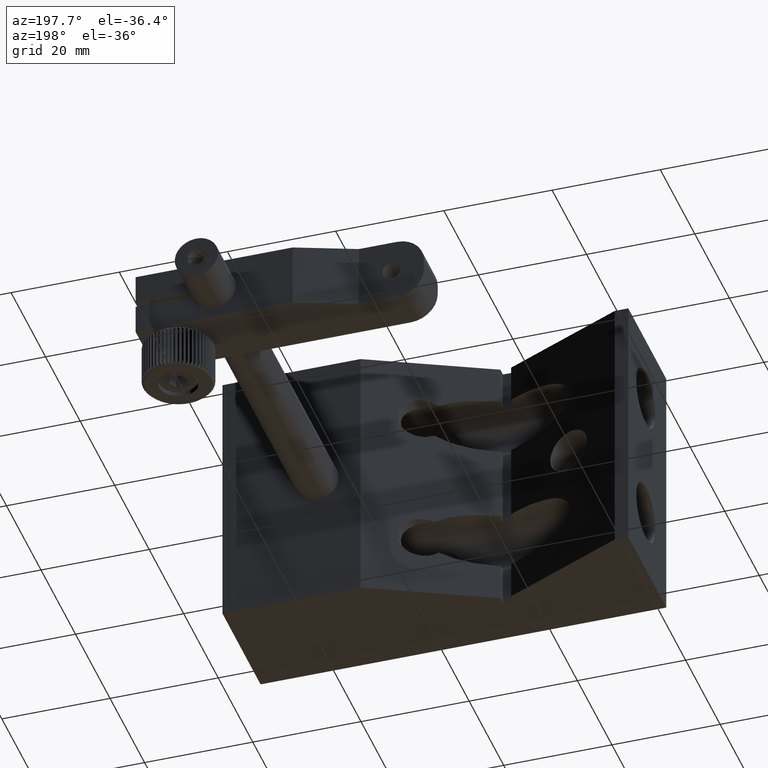
[diagram: clean part render]
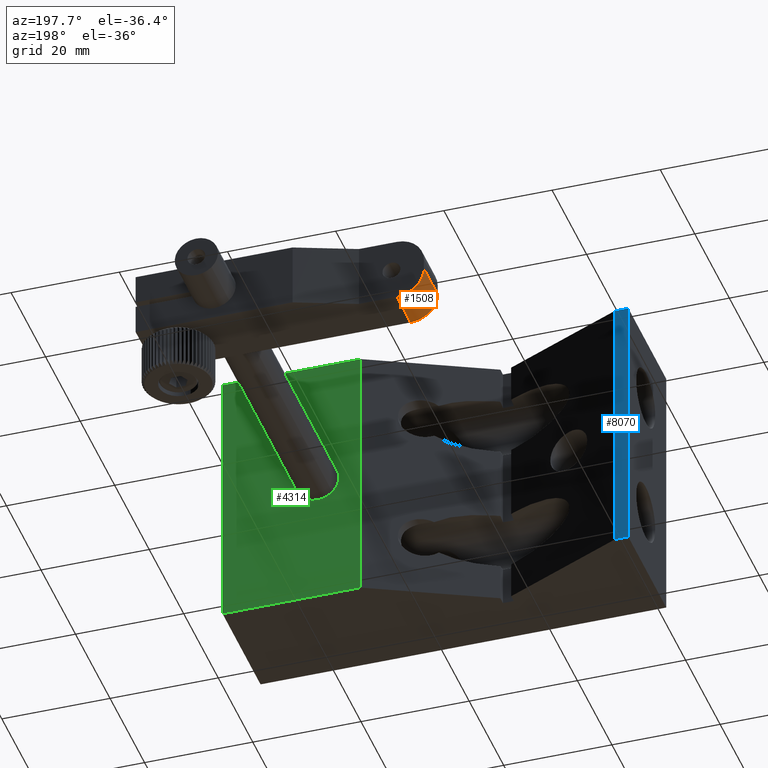
[diagram: same view with three faces highlighted in distinct colors, each labeled with its STEP entity id]
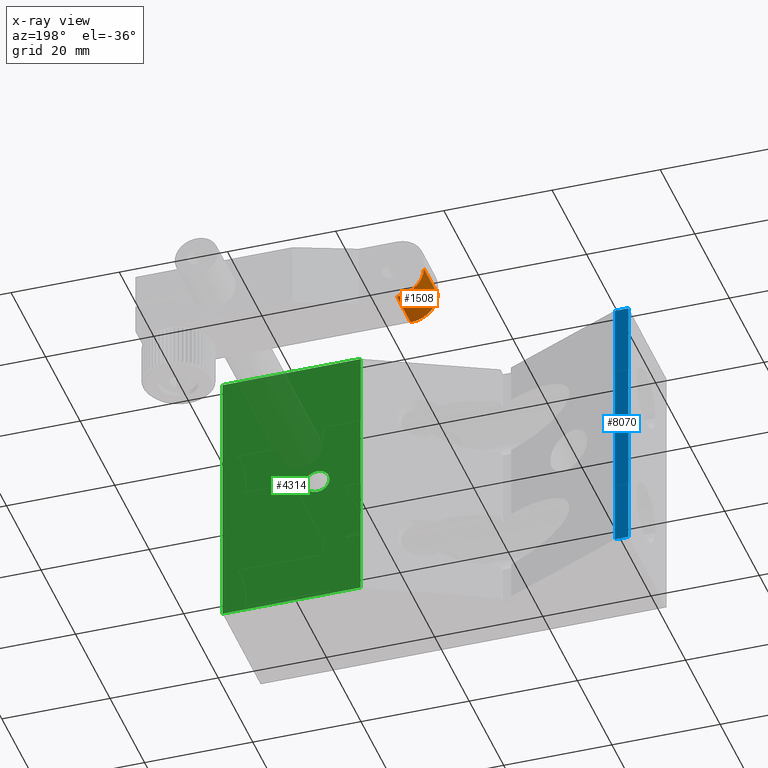
[diagram: x-ray of the same camera — body ghosted, the three highlighted faces saturated]
A machine part, auxiliary view with three faces highlighted in distinct colors.
The next image is the same camera in x-ray (body ghosted, the three faces saturated) — at least one of them is partly hidden behind the body in this view.
Their STEP definitions:

[orange] entity #1508 — the highlighted cylindrical surface (edge-blend (fillet) strip) has radius 5 mm, axis along (0, -1, 0).
#272 = LINE ( 'NONE', #2365, #12798 ) ;
#449 = ORIENTED_EDGE ( 'NONE', *, *, #10768, .F. ) ;
#1508 = ADVANCED_FACE ( 'NONE', ( #1855 ), #6385, .T. ) ;
#1809 = VERTEX_POINT ( 'NONE', #3890 ) ;
#1855 = FACE_OUTER_BOUND ( 'NONE', #8318, .T. ) ;
#1920 = ORIENTED_EDGE ( 'NONE', *, *, #6201, .F. ) ;
#2365 = CARTESIAN_POINT ( 'NONE',  ( -15.71396697902724800, 63.14249319889783900, -5.999999999999996400 ) ) ;
#2611 = AXIS2_PLACEMENT_3D ( 'NONE', #8272, #2904, #3980 ) ;
#2839 = VERTEX_POINT ( 'NONE', #5699 ) ;
#2904 = DIRECTION ( 'NONE',  ( -0.0000000000000000000, 1.000000000000000000, -0.0000000000000000000 ) ) ;
#2940 = EDGE_CURVE ( 'NONE', #11255, #1809, #8053, .T. ) ;
#3425 = DIRECTION ( 'NONE',  ( -0.0000000000000000000, 1.000000000000000000, -0.0000000000000000000 ) ) ;
#3519 = CARTESIAN_POINT ( 'NONE',  ( -15.71396697902724800, 71.14249319889783900, -0.9999999999999965600 ) ) ;
#3784 = CARTESIAN_POINT ( 'NONE',  ( -15.71396697902724800, 63.14249319889783900, -0.9999999999999965600 ) ) ;
#3890 = CARTESIAN_POINT ( 'NONE',  ( -15.71396697902724800, 63.14249319889783900, -5.999999999999996400 ) ) ;
#3980 = DIRECTION ( 'NONE',  ( 0.0000000000000000000, 0.0000000000000000000, -1.000000000000000000 ) ) ;
#4378 = CARTESIAN_POINT ( 'NONE',  ( -20.71396697902724800, 71.14249319889783900, -0.9999999999999965600 ) ) ;
#5151 = CARTESIAN_POINT ( 'NONE',  ( -20.71396697902724800, 71.14249319889783900, -0.9999999999999965600 ) ) ;
#5631 = DIRECTION ( 'NONE',  ( 0.0000000000000000000, 0.0000000000000000000, 1.000000000000000000 ) ) ;
#5644 = EDGE_CURVE ( 'NONE', #2839, #13839, #6454, .T. ) ;
#5699 = CARTESIAN_POINT ( 'NONE',  ( -15.71396697902724800, 71.14249319889783900, -5.999999999999996400 ) ) ;
#6201 = EDGE_CURVE ( 'NONE', #1809, #2839, #272, .T. ) ;
#6286 = LINE ( 'NONE', #5151, #12310 ) ;
#6385 = CYLINDRICAL_SURFACE ( 'NONE', #7336, 5.000000000000000000 ) ;
#6454 = CIRCLE ( 'NONE', #2611, 5.000000000000000000 ) ;
#6628 = DIRECTION ( 'NONE',  ( 0.0000000000000000000, 0.0000000000000000000, -1.000000000000000000 ) ) ;
#6888 = ORIENTED_EDGE ( 'NONE', *, *, #5644, .F. ) ;
#7295 = DIRECTION ( 'NONE',  ( 0.0000000000000000000, -1.000000000000000000, 0.0000000000000000000 ) ) ;
#7336 = AXIS2_PLACEMENT_3D ( 'NONE', #3519, #11108, #6628 ) ;
#8053 = CIRCLE ( 'NONE', #9852, 5.000000000000000000 ) ;
#8272 = CARTESIAN_POINT ( 'NONE',  ( -15.71396697902724800, 71.14249319889783900, -0.9999999999999965600 ) ) ;
#8318 = EDGE_LOOP ( 'NONE', ( #6888, #1920, #11471, #449 ) ) ;
#9852 = AXIS2_PLACEMENT_3D ( 'NONE', #3784, #9916, #5631 ) ;
#9916 = DIRECTION ( 'NONE',  ( -0.0000000000000000000, -1.000000000000000000, -0.0000000000000000000 ) ) ;
#10542 = CARTESIAN_POINT ( 'NONE',  ( -20.71396697902724800, 63.14249319889783900, -0.9999999999999965600 ) ) ;
#10768 = EDGE_CURVE ( 'NONE', #13839, #11255, #6286, .T. ) ;
#11108 = DIRECTION ( 'NONE',  ( 0.0000000000000000000, -1.000000000000000000, 0.0000000000000000000 ) ) ;
#11255 = VERTEX_POINT ( 'NONE', #10542 ) ;
#11471 = ORIENTED_EDGE ( 'NONE', *, *, #2940, .F. ) ;
#12310 = VECTOR ( 'NONE', #7295, 1000.000000000000000 ) ;
#12798 = VECTOR ( 'NONE', #3425, 1000.000000000000000 ) ;
#13839 = VERTEX_POINT ( 'NONE', #4378 ) ;

[blue] entity #8070 — the highlighted planar face has unit normal (-0, 1, 0).
#687 = VECTOR ( 'NONE', #9258, 1000.000000000000000 ) ;
#691 = PLANE ( 'NONE',  #5572 ) ;
#966 = DIRECTION ( 'NONE',  ( 0.0000000000000000000, 0.0000000000000000000, 1.000000000000000000 ) ) ;
#1776 = EDGE_CURVE ( 'NONE', #2551, #3485, #9898, .T. ) ;
#1786 = CARTESIAN_POINT ( 'NONE',  ( -40.71396697902721900, 15.40986166889786100, 25.00000000000000000 ) ) ;
#1825 = DIRECTION ( 'NONE',  ( -1.000000000000000000, -4.163336342344333900E-015, -0.0000000000000000000 ) ) ;
#1930 = DIRECTION ( 'NONE',  ( 0.0000000000000000000, 0.0000000000000000000, 1.000000000000000000 ) ) ;
#2021 = CARTESIAN_POINT ( 'NONE',  ( -40.71396697902721900, 15.40986166889786100, -25.00000000000000000 ) ) ;
#2551 = VERTEX_POINT ( 'NONE', #4063 ) ;
#2755 = LINE ( 'NONE', #2021, #7813 ) ;
#2829 = ORIENTED_EDGE ( 'NONE', *, *, #6905, .F. ) ;
#3094 = EDGE_LOOP ( 'NONE', ( #10881, #2829, #13635, #10636 ) ) ;
#3485 = VERTEX_POINT ( 'NONE', #4533 ) ;
#4063 = CARTESIAN_POINT ( 'NONE',  ( -38.21396697902721200, 15.40986166889787200, -25.00000000000000000 ) ) ;
#4533 = CARTESIAN_POINT ( 'NONE',  ( -40.71396697902721900, 15.40986166889786100, -25.00000000000000000 ) ) ;
#4670 = VERTEX_POINT ( 'NONE', #1786 ) ;
#4958 = CARTESIAN_POINT ( 'NONE',  ( -40.71396697902721900, 15.40986166889786100, -25.00000000000000000 ) ) ;
#5572 = AXIS2_PLACEMENT_3D ( 'NONE', #11306, #13473, #7051 ) ;
#6905 = EDGE_CURVE ( 'NONE', #9704, #4670, #7110, .T. ) ;
#7051 = DIRECTION ( 'NONE',  ( -1.000000000000000000, -4.163336342344333900E-015, 0.0000000000000000000 ) ) ;
#7110 = LINE ( 'NONE', #12396, #8619 ) ;
#7186 = VECTOR ( 'NONE', #1930, 1000.000000000000000 ) ;
#7330 = CARTESIAN_POINT ( 'NONE',  ( -38.21396697902721200, 15.40986166889787200, 25.00000000000000000 ) ) ;
#7813 = VECTOR ( 'NONE', #966, 1000.000000000000000 ) ;
#8070 = ADVANCED_FACE ( 'NONE', ( #13156 ), #691, .T. ) ;
#8187 = EDGE_CURVE ( 'NONE', #2551, #9704, #12685, .T. ) ;
#8619 = VECTOR ( 'NONE', #1825, 1000.000000000000000 ) ;
#9258 = DIRECTION ( 'NONE',  ( -1.000000000000000000, -4.163336342344333900E-015, -0.0000000000000000000 ) ) ;
#9428 = CARTESIAN_POINT ( 'NONE',  ( -38.21396697902721200, 15.40986166889787200, -25.00000000000000000 ) ) ;
#9704 = VERTEX_POINT ( 'NONE', #7330 ) ;
#9898 = LINE ( 'NONE', #4958, #687 ) ;
#10636 = ORIENTED_EDGE ( 'NONE', *, *, #1776, .T. ) ;
#10881 = ORIENTED_EDGE ( 'NONE', *, *, #11552, .T. ) ;
#11306 = CARTESIAN_POINT ( 'NONE',  ( -40.71396697902721900, 15.40986166889786100, -25.00000000000000000 ) ) ;
#11552 = EDGE_CURVE ( 'NONE', #3485, #4670, #2755, .T. ) ;
#12396 = CARTESIAN_POINT ( 'NONE',  ( -40.71396697902721900, 15.40986166889786100, 25.00000000000000000 ) ) ;
#12685 = LINE ( 'NONE', #9428, #7186 ) ;
#13156 = FACE_OUTER_BOUND ( 'NONE', #3094, .T. ) ;
#13473 = DIRECTION ( 'NONE',  ( -4.163336342344333900E-015, 1.000000000000000000, 0.0000000000000000000 ) ) ;
#13635 = ORIENTED_EDGE ( 'NONE', *, *, #8187, .F. ) ;

[green] entity #4314 — the highlighted planar face has unit normal (-0, 1, 0).
#81 = ORIENTED_EDGE ( 'NONE', *, *, #6788, .T. ) ;
#497 = CARTESIAN_POINT ( 'NONE',  ( 16.78603302097275600, 15.40986166889787200, 1.734723475976807100E-015 ) ) ;
#666 = LINE ( 'NONE', #6651, #7357 ) ;
#714 = CARTESIAN_POINT ( 'NONE',  ( 34.28603302097278100, 15.40986166889786100, 25.00000000000000000 ) ) ;
#1002 = EDGE_CURVE ( 'NONE', #8220, #4628, #5707, .T. ) ;
#1067 = ORIENTED_EDGE ( 'NONE', *, *, #9978, .T. ) ;
#1168 = EDGE_CURVE ( 'NONE', #8078, #6967, #5014, .T. ) ;
#2374 = ORIENTED_EDGE ( 'NONE', *, *, #11214, .T. ) ;
#2801 = FACE_BOUND ( 'NONE', #10555, .T. ) ;
#2871 = VECTOR ( 'NONE', #13604, 1000.000000000000000 ) ;
#3238 = VERTEX_POINT ( 'NONE', #13733 ) ;
#3515 = EDGE_CURVE ( 'NONE', #6967, #4628, #666, .T. ) ;
#3908 = ORIENTED_EDGE ( 'NONE', *, *, #1168, .F. ) ;
#4074 = CARTESIAN_POINT ( 'NONE',  ( 8.786033020972787700, 15.40986166889785000, -25.00000000000000000 ) ) ;
#4314 = ADVANCED_FACE ( 'NONE', ( #2801, #9851 ), #8140, .T. ) ;
#4628 = VERTEX_POINT ( 'NONE', #11561 ) ;
#4849 = VERTEX_POINT ( 'NONE', #12524 ) ;
#4921 = DIRECTION ( 'NONE',  ( -4.081702296416019000E-016, 1.000000000000000000, 0.0000000000000000000 ) ) ;
#5014 = LINE ( 'NONE', #7577, #11411 ) ;
#5463 = ORIENTED_EDGE ( 'NONE', *, *, #1002, .T. ) ;
#5707 = LINE ( 'NONE', #8307, #2871 ) ;
#6192 = DIRECTION ( 'NONE',  ( 0.0000000000000000000, 0.0000000000000000000, -1.000000000000000000 ) ) ;
#6651 = CARTESIAN_POINT ( 'NONE',  ( 8.786033020972787700, 15.40986166889785000, 25.00000000000000000 ) ) ;
#6788 = EDGE_CURVE ( 'NONE', #3238, #4849, #13599, .T. ) ;
#6941 = DIRECTION ( 'NONE',  ( -1.000000000000000000, -4.081702296416019000E-016, -0.0000000000000000000 ) ) ;
#6967 = VERTEX_POINT ( 'NONE', #714 ) ;
#7012 = CARTESIAN_POINT ( 'NONE',  ( 8.786033020972787700, 15.40986166889785000, -25.00000000000000000 ) ) ;
#7033 = DIRECTION ( 'NONE',  ( 0.0000000000000000000, 0.0000000000000000000, -1.000000000000000000 ) ) ;
#7149 = DIRECTION ( 'NONE',  ( -0.0000000000000000000, -1.000000000000000000, -0.0000000000000000000 ) ) ;
#7357 = VECTOR ( 'NONE', #8866, 1000.000000000000000 ) ;
#7477 = CIRCLE ( 'NONE', #11711, 2.249999999999995100 ) ;
#7577 = CARTESIAN_POINT ( 'NONE',  ( 34.28603302097278100, 15.40986166889786100, -25.00000000000000000 ) ) ;
#7982 = DIRECTION ( 'NONE',  ( -0.0000000000000000000, -1.000000000000000000, -0.0000000000000000000 ) ) ;
#7986 = CARTESIAN_POINT ( 'NONE',  ( 8.786033020972787700, 15.40986166889785000, -25.00000000000000000 ) ) ;
#8078 = VERTEX_POINT ( 'NONE', #13426 ) ;
#8140 = PLANE ( 'NONE',  #11311 ) ;
#8220 = VERTEX_POINT ( 'NONE', #4074 ) ;
#8307 = CARTESIAN_POINT ( 'NONE',  ( 8.786033020972787700, 15.40986166889785000, -25.00000000000000000 ) ) ;
#8654 = DIRECTION ( 'NONE',  ( 0.0000000000000000000, 0.0000000000000000000, 1.000000000000000000 ) ) ;
#8855 = VECTOR ( 'NONE', #6941, 1000.000000000000000 ) ;
#8866 = DIRECTION ( 'NONE',  ( -1.000000000000000000, -4.081702296416019000E-016, -0.0000000000000000000 ) ) ;
#9851 = FACE_OUTER_BOUND ( 'NONE', #12204, .T. ) ;
#9978 = EDGE_CURVE ( 'NONE', #8078, #8220, #13649, .T. ) ;
#10217 = DIRECTION ( 'NONE',  ( -1.000000000000000000, -4.081702296416019000E-016, 0.0000000000000000000 ) ) ;
#10555 = EDGE_LOOP ( 'NONE', ( #2374, #81 ) ) ;
#11214 = EDGE_CURVE ( 'NONE', #4849, #3238, #7477, .T. ) ;
#11311 = AXIS2_PLACEMENT_3D ( 'NONE', #7012, #4921, #10217 ) ;
#11411 = VECTOR ( 'NONE', #8654, 1000.000000000000000 ) ;
#11561 = CARTESIAN_POINT ( 'NONE',  ( 8.786033020972787700, 15.40986166889785000, 25.00000000000000000 ) ) ;
#11711 = AXIS2_PLACEMENT_3D ( 'NONE', #13526, #7149, #6192 ) ;
#11717 = ORIENTED_EDGE ( 'NONE', *, *, #3515, .F. ) ;
#11878 = AXIS2_PLACEMENT_3D ( 'NONE', #497, #7982, #7033 ) ;
#12204 = EDGE_LOOP ( 'NONE', ( #5463, #11717, #3908, #1067 ) ) ;
#12524 = CARTESIAN_POINT ( 'NONE',  ( 16.78603302097275600, 15.40986166889787200, -2.249999999999993300 ) ) ;
#13426 = CARTESIAN_POINT ( 'NONE',  ( 34.28603302097278100, 15.40986166889786100, -25.00000000000000000 ) ) ;
#13526 = CARTESIAN_POINT ( 'NONE',  ( 16.78603302097275600, 15.40986166889787200, 1.734723475976807100E-015 ) ) ;
#13599 = CIRCLE ( 'NONE', #11878, 2.249999999999995100 ) ;
#13604 = DIRECTION ( 'NONE',  ( 0.0000000000000000000, 0.0000000000000000000, 1.000000000000000000 ) ) ;
#13649 = LINE ( 'NONE', #7986, #8855 ) ;
#13733 = CARTESIAN_POINT ( 'NONE',  ( 16.78603302097275600, 15.40986166889787200, 2.249999999999996900 ) ) ;